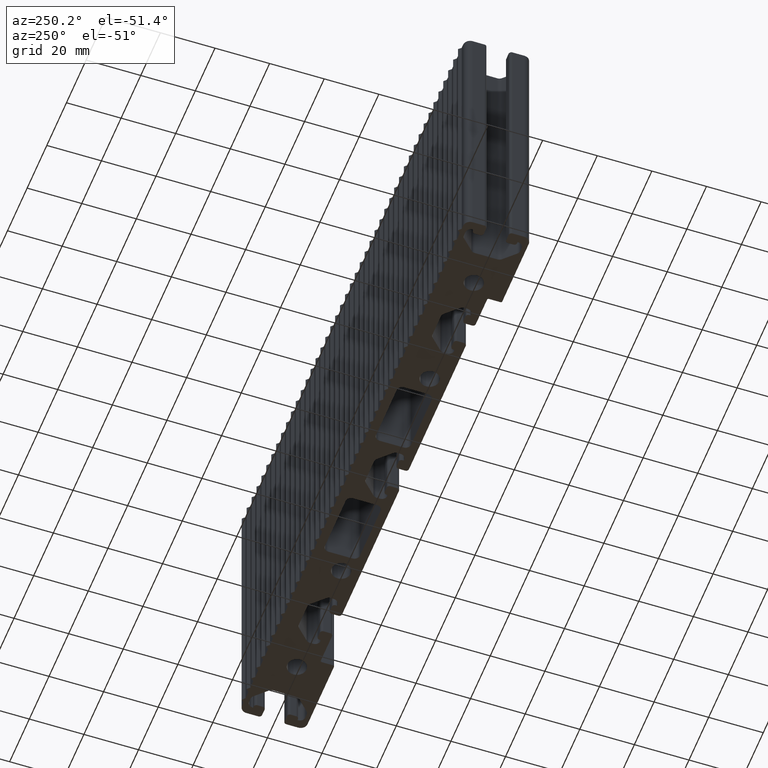
[diagram: clean part render]
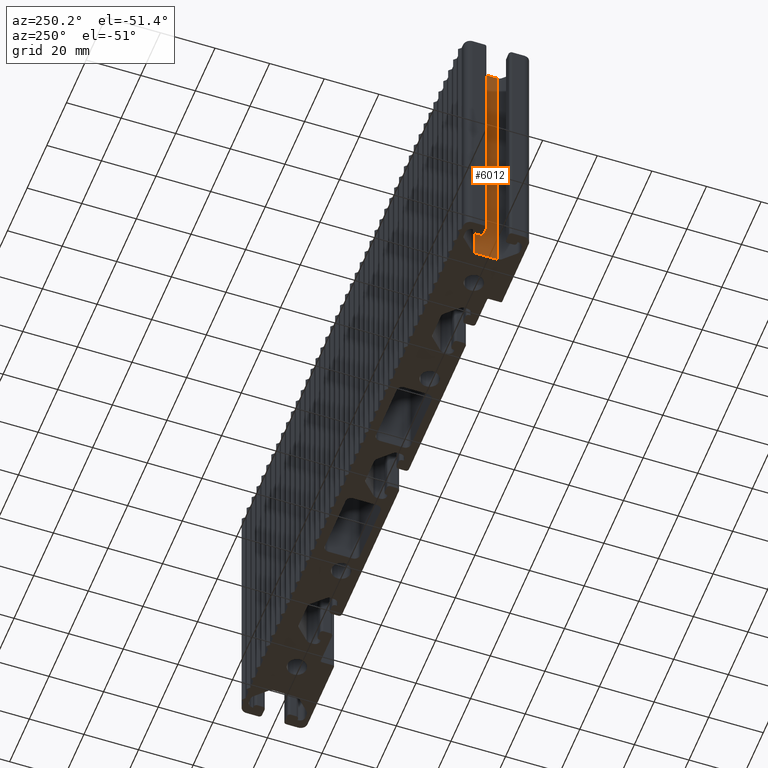
[diagram: same view with one face highlighted and labeled with its STEP entity id]
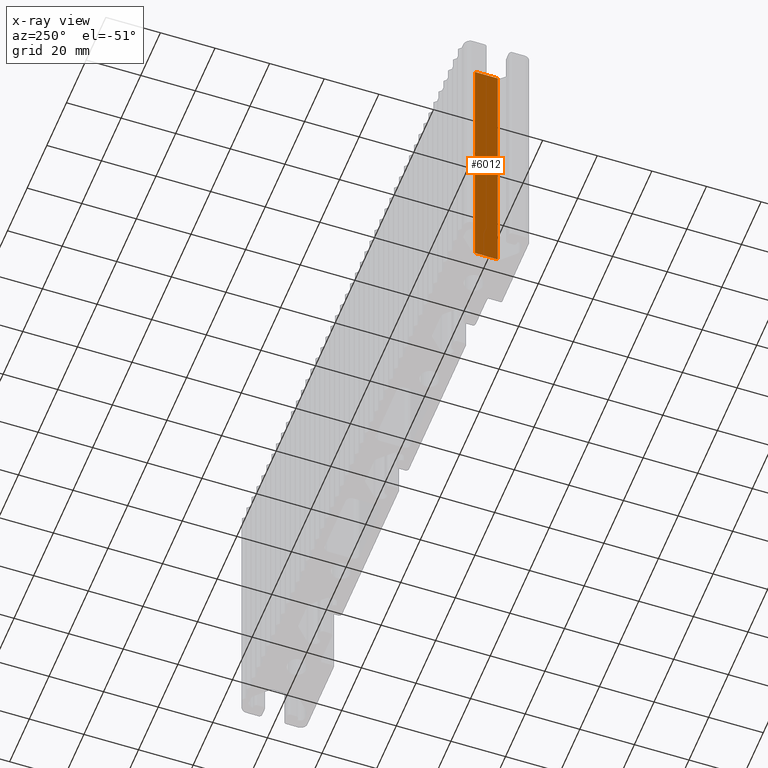
[diagram: x-ray of the same camera — body ghosted, the highlighted face saturated]
A machine part, auxiliary view. The second image highlights one B-rep face of the part: STEP entity #6012.
The next image is the same camera in x-ray: the body ghosted, the highlighted face saturated — about 0% of this face is hidden behind the body in this view.
In plain terms, the highlighted planar face has unit normal (-1, -0, 0).
Its self-contained STEP definition (entity closure, byte-faithful):
#92=PLANE('',#6433);
#373=FACE_OUTER_BOUND('',#680,.T.);
#680=EDGE_LOOP('',(#4483,#4484,#4485,#4486));
#1113=LINE('',#9041,#1852);
#1114=LINE('',#9044,#1853);
#1115=LINE('',#9046,#1854);
#1116=LINE('',#9047,#1855);
#1852=VECTOR('',#7370,100.);
#1853=VECTOR('',#7373,8.34314575050763);
#1854=VECTOR('',#7374,8.34314575050763);
#1855=VECTOR('',#7375,100.);
#2752=VERTEX_POINT('',#9037);
#2753=VERTEX_POINT('',#9039);
#2754=VERTEX_POINT('',#9043);
#2755=VERTEX_POINT('',#9045);
#3469=EDGE_CURVE('',#2752,#2753,#1113,.T.);
#3470=EDGE_CURVE('',#2752,#2754,#1114,.T.);
#3471=EDGE_CURVE('',#2755,#2753,#1115,.T.);
#3472=EDGE_CURVE('',#2754,#2755,#1116,.T.);
#4483=ORIENTED_EDGE('',*,*,#3470,.F.);
#4484=ORIENTED_EDGE('',*,*,#3469,.T.);
#4485=ORIENTED_EDGE('',*,*,#3471,.F.);
#4486=ORIENTED_EDGE('',*,*,#3472,.F.);
#6012=ADVANCED_FACE('',(#373),#92,.T.);
#6433=AXIS2_PLACEMENT_3D('',#9042,#7371,#7372);
#7370=DIRECTION('',(0.,0.,1.));
#7371=DIRECTION('center_axis',(-1.,-2.12912118824266E-15,0.));
#7372=DIRECTION('ref_axis',(1.4210854715202E-15,-1.,0.));
#7373=DIRECTION('',(-2.12912118824266E-15,1.,0.));
#7374=DIRECTION('',(2.12912118824266E-15,-1.,0.));
#7375=DIRECTION('',(0.,0.,1.));
#9037=CARTESIAN_POINT('',(-102.5,-4.17157287525378,0.));
#9039=CARTESIAN_POINT('',(-102.5,-4.17157287525378,100.));
#9041=CARTESIAN_POINT('',(-102.5,-4.17157287525378,0.));
#9042=CARTESIAN_POINT('Origin',(-102.5,4.17157287525385,0.));
#9043=CARTESIAN_POINT('',(-102.5,4.17157287525385,0.));
#9044=CARTESIAN_POINT('',(-102.5,-4.17157287525378,0.));
#9045=CARTESIAN_POINT('',(-102.5,4.17157287525385,100.));
#9046=CARTESIAN_POINT('',(-102.5,-4.17157287525378,100.));
#9047=CARTESIAN_POINT('',(-102.5,4.17157287525385,0.));